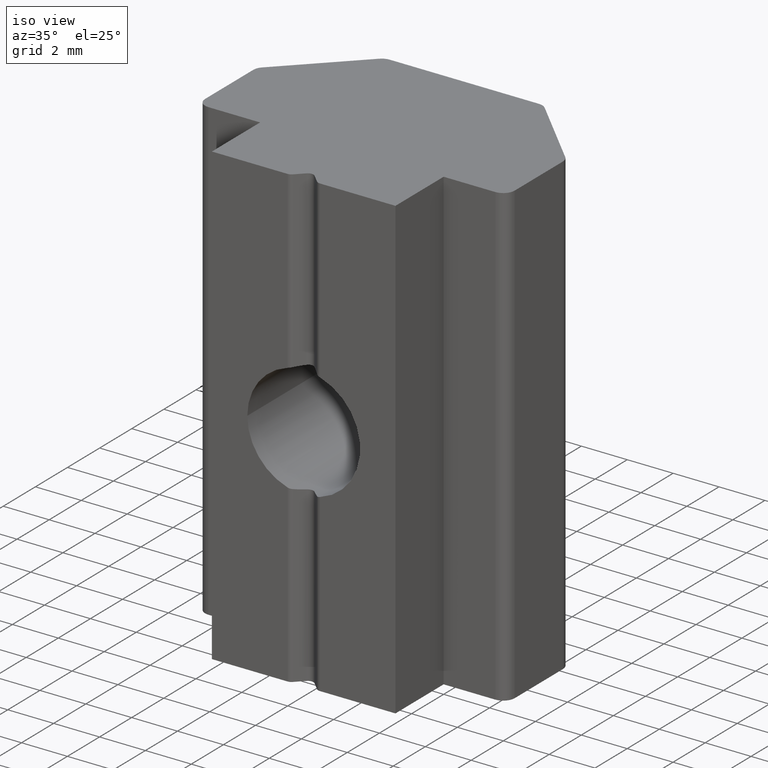
[diagram: clean part render]
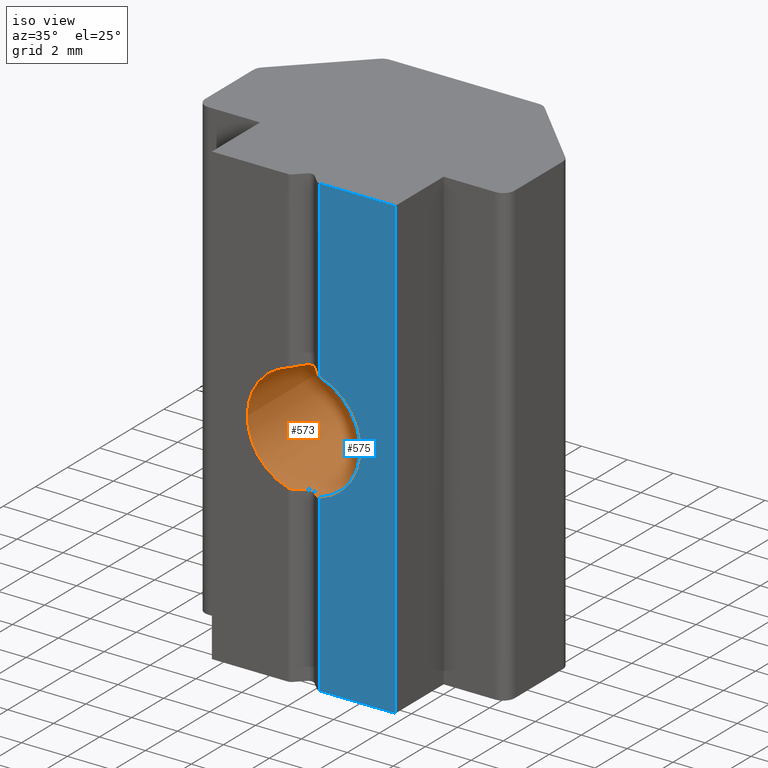
[diagram: same view with the hole feature highlighted: cylindrical wall and planar end face, labeled with their STEP entity ids]
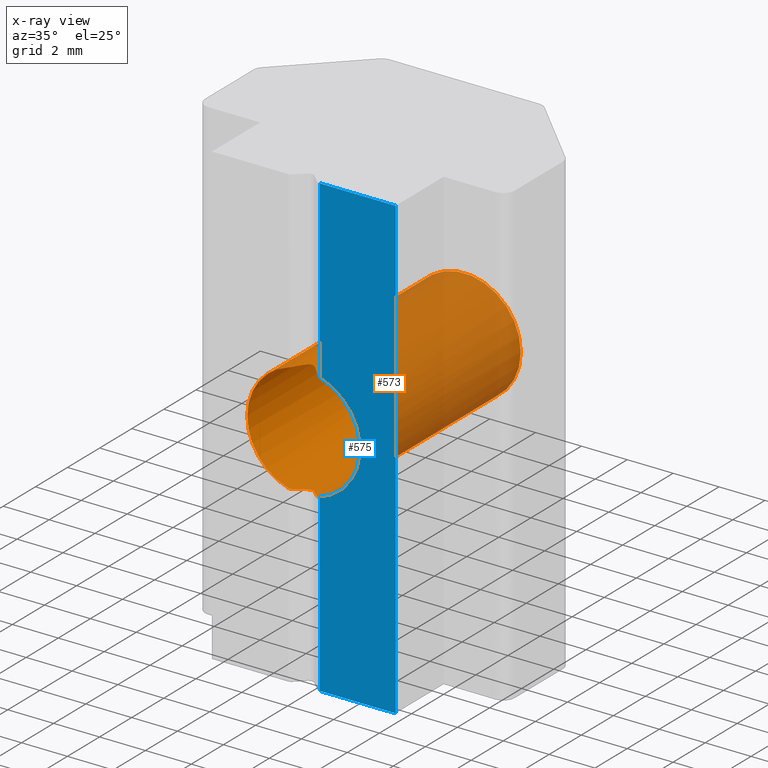
[diagram: x-ray of the same camera — body ghosted, the hole faces saturated]
A machine part, iso view. The highlighted faces form one hole feature of diameter 4.917 mm: the cylindrical wall (entity #573, orange) and its adjacent planar end face (entity #575, blue) — they share a circular edge in the B-rep.
The next image is the same camera in x-ray (body ghosted, the hole faces saturated) — the bore reads through the body.
Wall:
#33=FACE_OUTER_BOUND('',#63,.T.);
#63=EDGE_LOOP('',(#384,#385,#386,#387,#388,#389,#390,#391,#392,#393,#394,
#395,#396,#397,#398,#399,#400));
#94=ELLIPSE('',#627,3.47684404309426,2.4585);
#95=ELLIPSE('',#628,3.47684404309426,2.4585);
#96=ELLIPSE('',#630,3.47684404309426,2.4585);
#97=ELLIPSE('',#631,3.47684404309426,2.4585);
#98=B_SPLINE_CURVE_WITH_KNOTS('',3,(#862,#863,#864,#865,#866,#867),
 .UNSPECIFIED.,.F.,.F.,(4,2,4),(0.0189204678367977,0.0285275095447883,0.0382712235857992),
 .UNSPECIFIED.);
#99=B_SPLINE_CURVE_WITH_KNOTS('',3,(#871,#872,#873,#874,#875,#876,#877,
#878,#879,#880),.UNSPECIFIED.,.F.,.F.,(4,2,2,2,4),(0.0188483560750807,0.0282724998026584,
0.037696643530236,0.0471207872578136,0.0565449309853912),.UNSPECIFIED.);
#100=B_SPLINE_CURVE_WITH_KNOTS('',3,(#884,#885,#886,#887,#888,#889),
 .UNSPECIFIED.,.F.,.F.,(4,2,4),(0.0388214432074334,0.0485651572484443,0.0581721989564349),
 .UNSPECIFIED.);
#101=B_SPLINE_CURVE_WITH_KNOTS('',3,(#893,#894,#895,#896,#897,#898),
 .UNSPECIFIED.,.F.,.F.,(4,2,4),(0.0960131876847319,0.105620229392723,0.115363943433733),
 .UNSPECIFIED.);
#102=B_SPLINE_CURVE_WITH_KNOTS('',3,(#902,#903,#904,#905,#906,#907,#908,
#909,#910,#911),.UNSPECIFIED.,.F.,.F.,(4,2,2,2,4),(0.0942416431355526,0.10366578686313,
0.113089930590708,0.122514074318285,0.131938218045863),.UNSPECIFIED.);
#103=B_SPLINE_CURVE_WITH_KNOTS('',3,(#915,#916,#917,#918,#919,#920),
 .UNSPECIFIED.,.F.,.F.,(4,2,4),(0.115915169619862,0.125658883660873,0.135265925368863),
 .UNSPECIFIED.);
#104=LINE('',#858,#159);
#159=VECTOR('',#688,2.4585);
#214=CIRCLE('',#624,2.4585);
#215=CIRCLE('',#625,2.4585);
#216=CIRCLE('',#626,2.4585);
#217=CIRCLE('',#629,2.4585);
#218=CIRCLE('',#632,2.4585);
#237=VERTEX_POINT('',#853);
#238=VERTEX_POINT('',#854);
#239=VERTEX_POINT('',#857);
#240=VERTEX_POINT('',#859);
#241=VERTEX_POINT('',#861);
#242=VERTEX_POINT('',#868);
#243=VERTEX_POINT('',#870);
#244=VERTEX_POINT('',#881);
#245=VERTEX_POINT('',#883);
#246=VERTEX_POINT('',#890);
#247=VERTEX_POINT('',#892);
#248=VERTEX_POINT('',#899);
#249=VERTEX_POINT('',#901);
#250=VERTEX_POINT('',#912);
#251=VERTEX_POINT('',#914);
#296=EDGE_CURVE('',#237,#238,#214,.T.);
#297=EDGE_CURVE('',#238,#237,#215,.T.);
#298=EDGE_CURVE('',#238,#239,#104,.T.);
#299=EDGE_CURVE('',#240,#239,#216,.T.);
#300=EDGE_CURVE('',#241,#240,#98,.T.);
#301=EDGE_CURVE('',#242,#241,#94,.T.);
#302=EDGE_CURVE('',#243,#242,#99,.T.);
#303=EDGE_CURVE('',#244,#243,#95,.T.);
#304=EDGE_CURVE('',#245,#244,#100,.T.);
#305=EDGE_CURVE('',#246,#245,#217,.T.);
#306=EDGE_CURVE('',#247,#246,#101,.T.);
#307=EDGE_CURVE('',#248,#247,#96,.T.);
#308=EDGE_CURVE('',#249,#248,#102,.T.);
#309=EDGE_CURVE('',#250,#249,#97,.T.);
#310=EDGE_CURVE('',#251,#250,#103,.T.);
#311=EDGE_CURVE('',#239,#251,#218,.T.);
#384=ORIENTED_EDGE('',*,*,#296,.F.);
#385=ORIENTED_EDGE('',*,*,#297,.F.);
#386=ORIENTED_EDGE('',*,*,#298,.T.);
#387=ORIENTED_EDGE('',*,*,#299,.F.);
#388=ORIENTED_EDGE('',*,*,#300,.F.);
#389=ORIENTED_EDGE('',*,*,#301,.F.);
#390=ORIENTED_EDGE('',*,*,#302,.F.);
#391=ORIENTED_EDGE('',*,*,#303,.F.);
#392=ORIENTED_EDGE('',*,*,#304,.F.);
#393=ORIENTED_EDGE('',*,*,#305,.F.);
#394=ORIENTED_EDGE('',*,*,#306,.F.);
#395=ORIENTED_EDGE('',*,*,#307,.F.);
#396=ORIENTED_EDGE('',*,*,#308,.F.);
#397=ORIENTED_EDGE('',*,*,#309,.F.);
#398=ORIENTED_EDGE('',*,*,#310,.F.);
#399=ORIENTED_EDGE('',*,*,#311,.F.);
#400=ORIENTED_EDGE('',*,*,#298,.F.);
#560=CYLINDRICAL_SURFACE('',#623,2.4585);
#573=ADVANCED_FACE('',(#33),#560,.F.);
#623=AXIS2_PLACEMENT_3D('',#852,#682,#683);
#624=AXIS2_PLACEMENT_3D('',#855,#684,#685);
#625=AXIS2_PLACEMENT_3D('',#856,#686,#687);
#626=AXIS2_PLACEMENT_3D('',#860,#689,#690);
#627=AXIS2_PLACEMENT_3D('',#869,#691,#692);
#628=AXIS2_PLACEMENT_3D('',#882,#693,#694);
#629=AXIS2_PLACEMENT_3D('',#891,#695,#696);
#630=AXIS2_PLACEMENT_3D('',#900,#697,#698);
#631=AXIS2_PLACEMENT_3D('',#913,#699,#700);
#632=AXIS2_PLACEMENT_3D('',#921,#701,#702);
#682=DIRECTION('center_axis',(0.,1.,0.));
#683=DIRECTION('ref_axis',(1.,0.,0.));
#684=DIRECTION('center_axis',(0.,-1.,0.));
#685=DIRECTION('ref_axis',(1.,0.,0.));
#686=DIRECTION('center_axis',(0.,-1.,0.));
#687=DIRECTION('ref_axis',(1.,0.,0.));
#688=DIRECTION('',(0.,-1.,0.));
#689=DIRECTION('center_axis',(0.,1.,0.));
#690=DIRECTION('ref_axis',(1.,0.,0.));
#691=DIRECTION('center_axis',(-0.707106781186548,0.707106781186547,0.));
#692=DIRECTION('ref_axis',(0.707106781186547,0.707106781186548,0.));
#693=DIRECTION('center_axis',(0.70710678118655,0.707106781186546,0.));
#694=DIRECTION('ref_axis',(0.707106781186545,-0.70710678118655,0.));
#695=DIRECTION('center_axis',(0.,1.,0.));
#696=DIRECTION('ref_axis',(1.,0.,0.));
#697=DIRECTION('center_axis',(0.70710678118655,0.707106781186546,0.));
#698=DIRECTION('ref_axis',(0.707106781186545,-0.70710678118655,0.));
#699=DIRECTION('center_axis',(-0.707106781186548,0.707106781186547,0.));
#700=DIRECTION('ref_axis',(0.707106781186547,0.707106781186548,0.));
#701=DIRECTION('center_axis',(0.,1.,0.));
#702=DIRECTION('ref_axis',(1.,0.,0.));
#852=CARTESIAN_POINT('Origin',(0.,2.,0.));
#853=CARTESIAN_POINT('',(2.4585,7.,0.));
#854=CARTESIAN_POINT('',(-2.4585,7.,3.01079415570377E-16));
#855=CARTESIAN_POINT('Origin',(0.,7.,0.));
#856=CARTESIAN_POINT('Origin',(0.,7.,0.));
#857=CARTESIAN_POINT('',(-2.4585,-3.,3.01079415570377E-16));
#858=CARTESIAN_POINT('',(-2.4585,2.,3.01079415570377E-16));
#859=CARTESIAN_POINT('',(-0.707106781186547,-3.,-2.3546172194223));
#860=CARTESIAN_POINT('Origin',(0.,-3.,0.));
#861=CARTESIAN_POINT('',(-0.53033008588991,-2.92677669529664,-2.40061913888897));
#862=CARTESIAN_POINT('Ctrl Pts',(-0.53033008588991,-2.92677669529664,-2.40061913888897));
#863=CARTESIAN_POINT('Ctrl Pts',(-0.552742798179244,-2.94918940758597,-2.395667859679));
#864=CARTESIAN_POINT('Ctrl Pts',(-0.580917754245045,-2.96833864666688,-2.38909056142037));
#865=CARTESIAN_POINT('Ctrl Pts',(-0.642515681378598,-2.99383357764456,-2.37327227968733));
#866=CARTESIAN_POINT('Ctrl Pts',(-0.676000121486064,-3.,-2.36395875053523));
#867=CARTESIAN_POINT('Ctrl Pts',(-0.707106781186547,-3.,-2.3546172194223));
#868=CARTESIAN_POINT('',(-0.176776695296637,-2.57322330470336,-2.45213626252702));
#869=CARTESIAN_POINT('Origin',(0.,-2.39644660940673,0.));
#870=CARTESIAN_POINT('',(0.176776695296638,-2.57322330470336,-2.45213626252702));
#871=CARTESIAN_POINT('Ctrl Pts',(0.176776695296637,-2.57322330470336,-2.45213626252702));
#872=CARTESIAN_POINT('Ctrl Pts',(0.154592580057102,-2.55103918946383,-2.45373553522653));
#873=CARTESIAN_POINT('Ctrl Pts',(0.126495220658897,-2.53180269429252,-2.45543701473341));
#874=CARTESIAN_POINT('Ctrl Pts',(0.0649067455557279,-2.5062825004358,-2.45783626153865));
#875=CARTESIAN_POINT('Ctrl Pts',(0.0314138124252587,-2.5,-2.4585));
#876=CARTESIAN_POINT('Ctrl Pts',(-0.0314138124252588,-2.5,-2.4585));
#877=CARTESIAN_POINT('Ctrl Pts',(-0.064906745555728,-2.5062825004358,-2.45783626153865));
#878=CARTESIAN_POINT('Ctrl Pts',(-0.126495220658897,-2.53180269429252,-2.45543701473341));
#879=CARTESIAN_POINT('Ctrl Pts',(-0.154592580057102,-2.55103918946383,-2.45373553522653));
#880=CARTESIAN_POINT('Ctrl Pts',(-0.176776695296637,-2.57322330470336,-2.45213626252702));
#881=CARTESIAN_POINT('',(0.530330085889911,-2.92677669529664,-2.40061913888897));
#882=CARTESIAN_POINT('Origin',(0.,-2.39644660940672,0.));
#883=CARTESIAN_POINT('',(0.707106781186547,-3.,-2.3546172194223));
#884=CARTESIAN_POINT('Ctrl Pts',(0.707106781186547,-3.,-2.3546172194223));
#885=CARTESIAN_POINT('Ctrl Pts',(0.676000121486064,-3.,-2.36395875053523));
#886=CARTESIAN_POINT('Ctrl Pts',(0.642515681378598,-2.99383357764456,-2.37327227968733));
#887=CARTESIAN_POINT('Ctrl Pts',(0.580917754245045,-2.96833864666688,-2.38909056142037));
#888=CARTESIAN_POINT('Ctrl Pts',(0.552742798179245,-2.94918940758597,-2.395667859679));
#889=CARTESIAN_POINT('Ctrl Pts',(0.530330085889911,-2.92677669529664,-2.40061913888897));
#890=CARTESIAN_POINT('',(0.707106781186547,-3.,2.3546172194223));
#891=CARTESIAN_POINT('Origin',(0.,-3.,0.));
#892=CARTESIAN_POINT('',(0.530330085889911,-2.92677669529664,2.40061913888897));
#893=CARTESIAN_POINT('Ctrl Pts',(0.530330085889911,-2.92677669529664,2.40061913888897));
#894=CARTESIAN_POINT('Ctrl Pts',(0.552742798179245,-2.94918940758597,2.395667859679));
#895=CARTESIAN_POINT('Ctrl Pts',(0.580917754245045,-2.96833864666688,2.38909056142037));
#896=CARTESIAN_POINT('Ctrl Pts',(0.642515681378598,-2.99383357764456,2.37327227968733));
#897=CARTESIAN_POINT('Ctrl Pts',(0.676000121486064,-3.,2.36395875053523));
#898=CARTESIAN_POINT('Ctrl Pts',(0.707106781186547,-3.,2.3546172194223));
#899=CARTESIAN_POINT('',(0.176776695296638,-2.57322330470336,2.45213626252702));
#900=CARTESIAN_POINT('Origin',(0.,-2.39644660940672,0.));
#901=CARTESIAN_POINT('',(-0.176776695296637,-2.57322330470336,2.45213626252702));
#902=CARTESIAN_POINT('Ctrl Pts',(-0.176776695296637,-2.57322330470336,2.45213626252702));
#903=CARTESIAN_POINT('Ctrl Pts',(-0.154592580057102,-2.55103918946383,2.45373553522653));
#904=CARTESIAN_POINT('Ctrl Pts',(-0.126495220658897,-2.53180269429252,2.45543701473341));
#905=CARTESIAN_POINT('Ctrl Pts',(-0.064906745555728,-2.5062825004358,2.45783626153865));
#906=CARTESIAN_POINT('Ctrl Pts',(-0.0314138124252588,-2.5,2.4585));
#907=CARTESIAN_POINT('Ctrl Pts',(0.0314138124252587,-2.5,2.4585));
#908=CARTESIAN_POINT('Ctrl Pts',(0.0649067455557279,-2.5062825004358,2.45783626153865));
#909=CARTESIAN_POINT('Ctrl Pts',(0.126495220658897,-2.53180269429252,2.45543701473341));
#910=CARTESIAN_POINT('Ctrl Pts',(0.154592580057102,-2.55103918946383,2.45373553522653));
#911=CARTESIAN_POINT('Ctrl Pts',(0.176776695296637,-2.57322330470336,2.45213626252702));
#912=CARTESIAN_POINT('',(-0.53033008588991,-2.92677669529664,2.40061913888897));
#913=CARTESIAN_POINT('Origin',(0.,-2.39644660940673,0.));
#914=CARTESIAN_POINT('',(-0.707106781186547,-3.,2.3546172194223));
#915=CARTESIAN_POINT('Ctrl Pts',(-0.707106781186547,-3.,2.3546172194223));
#916=CARTESIAN_POINT('Ctrl Pts',(-0.676000121486064,-3.,2.36395875053523));
#917=CARTESIAN_POINT('Ctrl Pts',(-0.642515681378598,-2.99383357764456,2.37327227968733));
#918=CARTESIAN_POINT('Ctrl Pts',(-0.580917754245045,-2.96833864666688,2.38909056142037));
#919=CARTESIAN_POINT('Ctrl Pts',(-0.552742798179245,-2.94918940758597,2.395667859679));
#920=CARTESIAN_POINT('Ctrl Pts',(-0.53033008588991,-2.92677669529664,2.40061913888897));
#921=CARTESIAN_POINT('Origin',(0.,-3.,0.));
End face:
#16=PLANE('',#635);
#35=FACE_OUTER_BOUND('',#65,.T.);
#65=EDGE_LOOP('',(#405,#406,#407,#408,#409,#410));
#107=LINE('',#930,#162);
#108=LINE('',#932,#163);
#109=LINE('',#934,#164);
#110=LINE('',#936,#165);
#111=LINE('',#937,#166);
#162=VECTOR('',#711,10.);
#163=VECTOR('',#712,10.);
#164=VECTOR('',#713,10.);
#165=VECTOR('',#714,10.);
#166=VECTOR('',#715,10.);
#217=CIRCLE('',#629,2.4585);
#245=VERTEX_POINT('',#883);
#246=VERTEX_POINT('',#890);
#254=VERTEX_POINT('',#929);
#255=VERTEX_POINT('',#931);
#256=VERTEX_POINT('',#933);
#257=VERTEX_POINT('',#935);
#305=EDGE_CURVE('',#246,#245,#217,.T.);
#315=EDGE_CURVE('',#245,#254,#107,.T.);
#316=EDGE_CURVE('',#255,#254,#108,.T.);
#317=EDGE_CURVE('',#255,#256,#109,.T.);
#318=EDGE_CURVE('',#257,#256,#110,.T.);
#319=EDGE_CURVE('',#257,#246,#111,.T.);
#405=ORIENTED_EDGE('',*,*,#305,.T.);
#406=ORIENTED_EDGE('',*,*,#315,.T.);
#407=ORIENTED_EDGE('',*,*,#316,.F.);
#408=ORIENTED_EDGE('',*,*,#317,.T.);
#409=ORIENTED_EDGE('',*,*,#318,.F.);
#410=ORIENTED_EDGE('',*,*,#319,.T.);
#575=ADVANCED_FACE('',(#35),#16,.T.);
#629=AXIS2_PLACEMENT_3D('',#891,#695,#696);
#635=AXIS2_PLACEMENT_3D('',#928,#709,#710);
#695=DIRECTION('center_axis',(0.,1.,0.));
#696=DIRECTION('ref_axis',(1.,0.,0.));
#709=DIRECTION('center_axis',(0.,-1.,0.));
#710=DIRECTION('ref_axis',(1.,0.,0.));
#711=DIRECTION('',(0.,0.,-1.));
#712=DIRECTION('',(-1.,0.,0.));
#713=DIRECTION('',(0.,0.,1.));
#714=DIRECTION('',(1.,0.,0.));
#715=DIRECTION('',(0.,0.,-1.));
#883=CARTESIAN_POINT('',(0.707106781186547,-3.,-2.3546172194223));
#890=CARTESIAN_POINT('',(0.707106781186547,-3.,2.3546172194223));
#891=CARTESIAN_POINT('Origin',(0.,-3.,0.));
#928=CARTESIAN_POINT('Origin',(-4.,-3.,0.));
#929=CARTESIAN_POINT('',(0.707106781186547,-3.,-10.));
#930=CARTESIAN_POINT('',(0.707106781186547,-3.,0.));
#931=CARTESIAN_POINT('',(4.,-3.,-10.));
#932=CARTESIAN_POINT('',(-4.,-3.,-10.));
#933=CARTESIAN_POINT('',(4.,-3.,10.));
#934=CARTESIAN_POINT('',(4.,-3.,0.));
#935=CARTESIAN_POINT('',(0.707106781186547,-3.,10.));
#936=CARTESIAN_POINT('',(-4.,-3.,10.));
#937=CARTESIAN_POINT('',(0.707106781186547,-3.,0.));